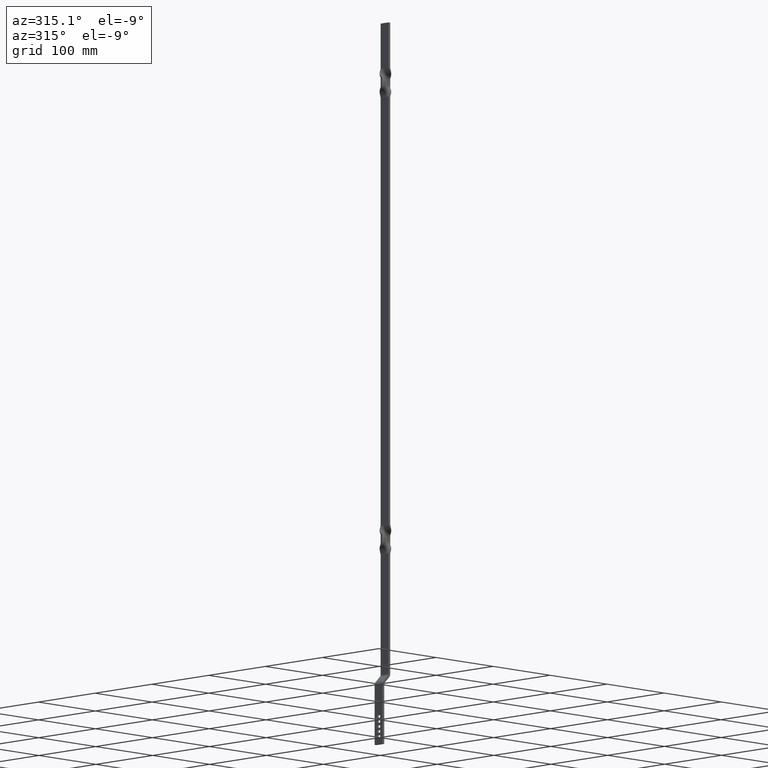
[diagram: clean part render]
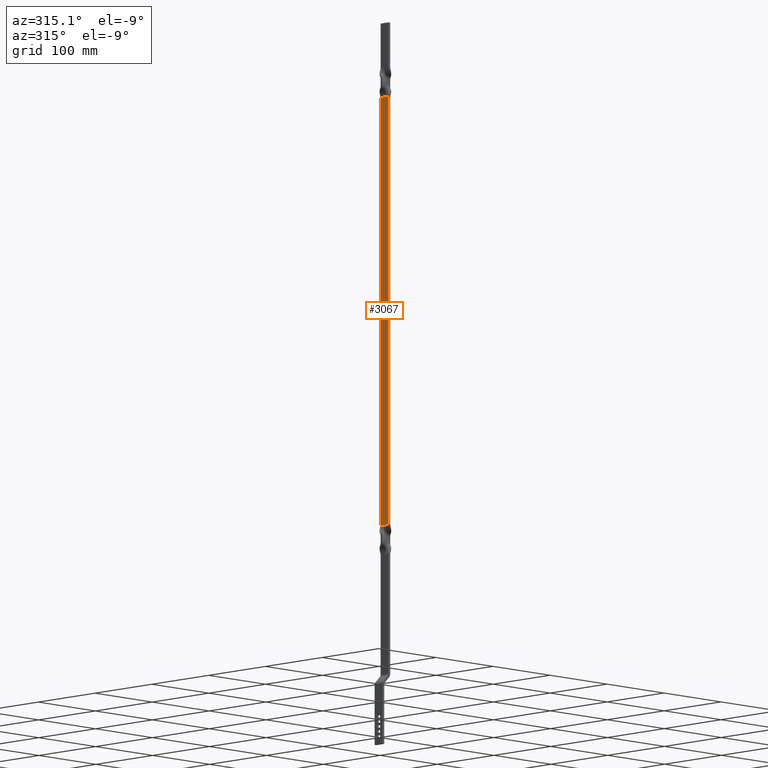
[diagram: same view with one face highlighted and labeled with its STEP entity id]
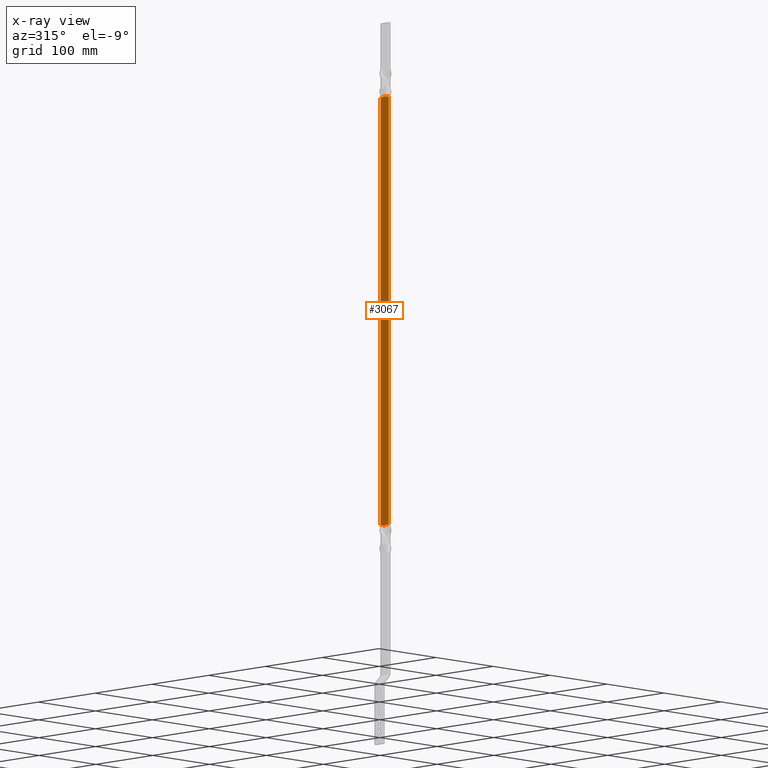
[diagram: x-ray of the same camera — body ghosted, the highlighted face saturated]
A machine part, auxiliary view. The second image highlights one B-rep face of the part: STEP entity #3067.
The next image is the same camera in x-ray: the body ghosted, the highlighted face saturated — about 0% of this face is hidden behind the body in this view.
In plain terms, the highlighted face is a freeform B-spline surface patch.
Its self-contained STEP definition (entity closure, byte-faithful):
#82=CARTESIAN_POINT('',(7.500000000571889,0.271775746121583,806.499999864677990));
#83=VERTEX_POINT('',#82);
#105=CARTESIAN_POINT('',(7.499999999853790,-7.0,805.289823060197930));
#106=VERTEX_POINT('',#105);
#107=CARTESIAN_POINT('',(7.499999999853790,-7.0,805.289823060197930));
#108=CARTESIAN_POINT('',(7.499999999853790,-6.389812878324903,805.363019088140620));
#109=CARTESIAN_POINT('',(7.499999999853808,-5.780642736340753,805.443213533620000));
#110=CARTESIAN_POINT('',(7.499999999853807,-4.564574697634914,805.619239040756950));
#111=CARTESIAN_POINT('',(7.499999999853879,-3.957689163754469,805.715155178179540));
#112=CARTESIAN_POINT('',(7.499999999853876,-2.746067614053484,805.921779513298700));
#113=CARTESIAN_POINT('',(7.499999999853744,-2.141573673938032,806.032512532995610));
#114=CARTESIAN_POINT('',(7.499999999853745,-0.934187228391442,806.262608756907070));
#115=CARTESIAN_POINT('',(7.499999999853720,-0.331125421860196,806.381840314640950));
#116=CARTESIAN_POINT('',(7.500000000571889,0.271775746121583,806.499999864677990));
#117=B_SPLINE_CURVE_WITH_KNOTS('',3,(#107,#108,#109,#110,#111,#112,#113,#114,#115,#116),.UNSPECIFIED.,.F.,.U.,(4,2,2,2,4),(0.0,0.250000000000000,0.500000000000000,0.750000000000000,1.0),.UNSPECIFIED.);
#118=EDGE_CURVE('',#106,#83,#117,.T.);
#183=CARTESIAN_POINT('',(7.499999999853790,7.0,805.313138716610070));
#184=VERTEX_POINT('',#183);
#198=CARTESIAN_POINT('',(7.500000000571889,0.271775746121583,806.499999864677990));
#199=CARTESIAN_POINT('',(7.499999999853777,0.828539090128347,806.380513350783420));
#200=CARTESIAN_POINT('',(7.499999999853745,1.385497779343845,806.259857673429680));
#201=CARTESIAN_POINT('',(7.499999999853745,2.501416190333592,806.030179031301030));
#202=CARTESIAN_POINT('',(7.499999999853907,3.060551510413324,805.921249581323540));
#203=CARTESIAN_POINT('',(7.499999999853905,4.182003036503403,805.720280133217560));
#204=CARTESIAN_POINT('',(7.499999999853882,4.743981124447804,805.628100186777490));
#205=CARTESIAN_POINT('',(7.499999999853880,5.870317070206182,805.459521709365280));
#206=CARTESIAN_POINT('',(7.499999999853789,6.434661942369177,805.383037064203900));
#207=CARTESIAN_POINT('',(7.499999999853790,7.0,805.313138716610070));
#208=B_SPLINE_CURVE_WITH_KNOTS('',3,(#198,#199,#200,#201,#202,#203,#204,#205,#206,#207),.UNSPECIFIED.,.F.,.U.,(4,2,2,2,4),(0.0,0.250000000000000,0.500000000000000,0.750000000000000,1.0),.UNSPECIFIED.);
#209=EDGE_CURVE('',#83,#184,#208,.T.);
#1557=CARTESIAN_POINT('',(7.499999999976470,0.271775746034668,266.499999864581980));
#1558=VERTEX_POINT('',#1557);
#1591=CARTESIAN_POINT('',(7.499999999854690,7.0,267.686861012508020));
#1592=VERTEX_POINT('',#1591);
#1593=CARTESIAN_POINT('',(7.499999999854690,7.0,267.686861012508020));
#1594=CARTESIAN_POINT('',(7.499999999854692,6.434663200711323,267.616962820487170));
#1595=CARTESIAN_POINT('',(7.499999999854721,5.870319582450883,267.540478360341010));
#1596=CARTESIAN_POINT('',(7.499999999854721,4.743986133278495,267.371900327362310));
#1597=CARTESIAN_POINT('',(7.499999999854709,4.182009287838344,267.279720641528630));
#1598=CARTESIAN_POINT('',(7.499999999854708,3.060560236011716,267.078751785894330));
#1599=CARTESIAN_POINT('',(7.499999999854718,2.501421362183370,266.969821780118420));
#1600=CARTESIAN_POINT('',(7.499999999854717,1.385487364092358,266.740139893537500));
#1601=CARTESIAN_POINT('',(7.499999999854690,0.828538036155903,266.619485249167780));
#1602=CARTESIAN_POINT('',(7.499999999976470,0.271775746034668,266.499999864581980));
#1603=B_SPLINE_CURVE_WITH_KNOTS('',3,(#1593,#1594,#1595,#1596,#1597,#1598,#1599,#1600,#1601,#1602),.UNSPECIFIED.,.F.,.U.,(4,2,2,2,4),(0.0,0.250000000000000,0.500000000000000,0.750000000000000,1.0),.UNSPECIFIED.);
#1604=EDGE_CURVE('',#1592,#1558,#1603,.T.);
#1669=CARTESIAN_POINT('',(7.499999999854690,-7.0,267.710176669184480));
#1670=VERTEX_POINT('',#1669);
#1684=CARTESIAN_POINT('',(7.499999999976470,0.271775746034668,266.499999864581980));
#1685=CARTESIAN_POINT('',(7.499999999854688,-0.331125125954822,266.618160924396020));
#1686=CARTESIAN_POINT('',(7.499999999854678,-0.934187228375713,266.737390973013590));
#1687=CARTESIAN_POINT('',(7.499999999854678,-2.141573673967939,266.967487196594620));
#1688=CARTESIAN_POINT('',(7.499999999854714,-2.746067614083067,267.078220216249690));
#1689=CARTESIAN_POINT('',(7.499999999854715,-3.957689163781673,267.284844551285570));
#1690=CARTESIAN_POINT('',(7.499999999854671,-4.564574697658108,267.380760688685090));
#1691=CARTESIAN_POINT('',(7.499999999854673,-5.780642736353827,267.556786195785380));
#1692=CARTESIAN_POINT('',(7.499999999854691,-6.389812878331644,267.636980641252310));
#1693=CARTESIAN_POINT('',(7.499999999854690,-7.0,267.710176669184480));
#1694=B_SPLINE_CURVE_WITH_KNOTS('',3,(#1684,#1685,#1686,#1687,#1688,#1689,#1690,#1691,#1692,#1693),.UNSPECIFIED.,.F.,.U.,(4,2,2,2,4),(0.0,0.250000000000000,0.500000000000000,0.750000000000000,1.0),.UNSPECIFIED.);
#1695=EDGE_CURVE('',#1558,#1670,#1694,.T.);
#3005=CARTESIAN_POINT('',(7.499999999853790,-7.0,805.289823060197930));
#3006=CARTESIAN_POINT('',(7.499999999854690,-7.0,267.710176669184480));
#3007=QUASI_UNIFORM_CURVE('',1,(#3005,#3006),.UNSPECIFIED.,.F.,.U.);
#3008=EDGE_CURVE('',#106,#1670,#3007,.T.);
#3045=CARTESIAN_POINT('',(7.499999999853790,7.0,805.313138716610070));
#3046=CARTESIAN_POINT('',(7.499999999854690,7.0,267.686861012508020));
#3047=QUASI_UNIFORM_CURVE('',1,(#3045,#3046),.UNSPECIFIED.,.F.,.U.);
#3048=EDGE_CURVE('',#184,#1592,#3047,.T.);
#3054=CARTESIAN_POINT('',(7.499999999853780,-7.699299972865286,239.527000911202010));
#3055=CARTESIAN_POINT('',(7.499999999853780,-7.699299972865286,833.473013301986840));
#3056=CARTESIAN_POINT('',(7.499999999853780,7.699300348374547,239.527000911202010));
#3057=CARTESIAN_POINT('',(7.499999999853780,7.699300348374547,833.473013301986840));
#3058=B_SPLINE_SURFACE_WITH_KNOTS('',1,1,((#3054,#3056),(#3055,#3057)),.UNSPECIFIED.,.F.,.F.,.U.,(2,2),(2,2),(0.0,593.946012390784860),(0.0,15.398600321239829),.UNSPECIFIED.);
#3059=ORIENTED_EDGE('',*,*,#3008,.F.);
#3060=ORIENTED_EDGE('',*,*,#118,.T.);
#3061=ORIENTED_EDGE('',*,*,#209,.T.);
#3062=ORIENTED_EDGE('',*,*,#3048,.T.);
#3063=ORIENTED_EDGE('',*,*,#1604,.T.);
#3064=ORIENTED_EDGE('',*,*,#1695,.T.);
#3065=EDGE_LOOP('',(#3059,#3060,#3061,#3062,#3063,#3064));
#3066=FACE_OUTER_BOUND('',#3065,.T.);
#3067=ADVANCED_FACE('',(#3066),#3058,.T.);